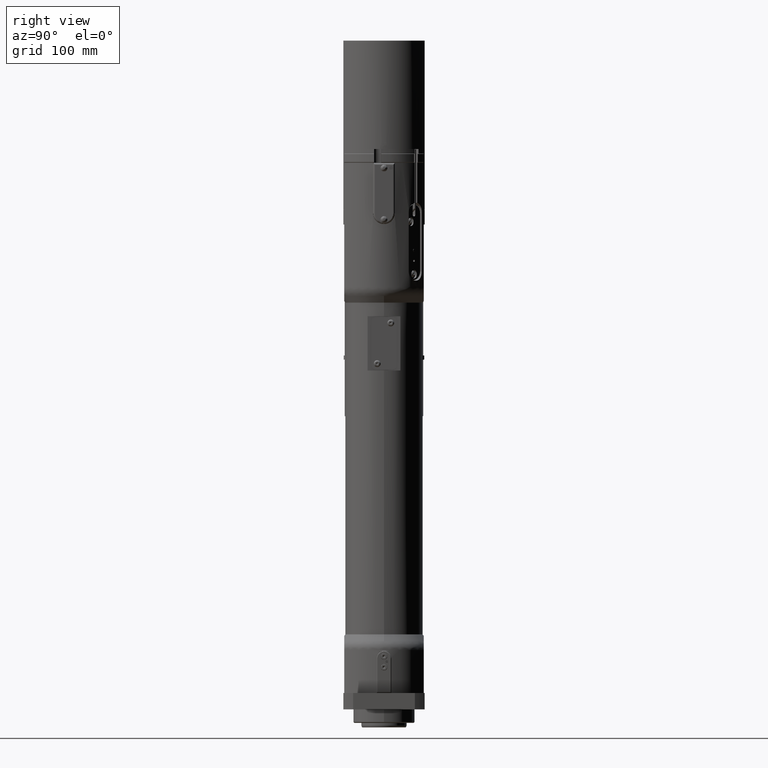
[diagram: clean part render]
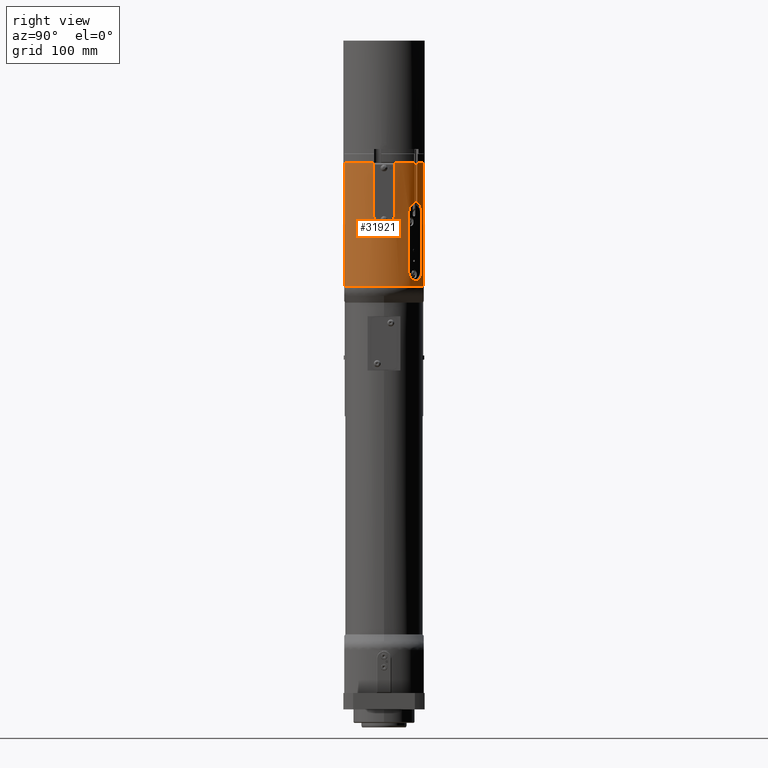
[diagram: same view with one face highlighted and labeled with its STEP entity id]
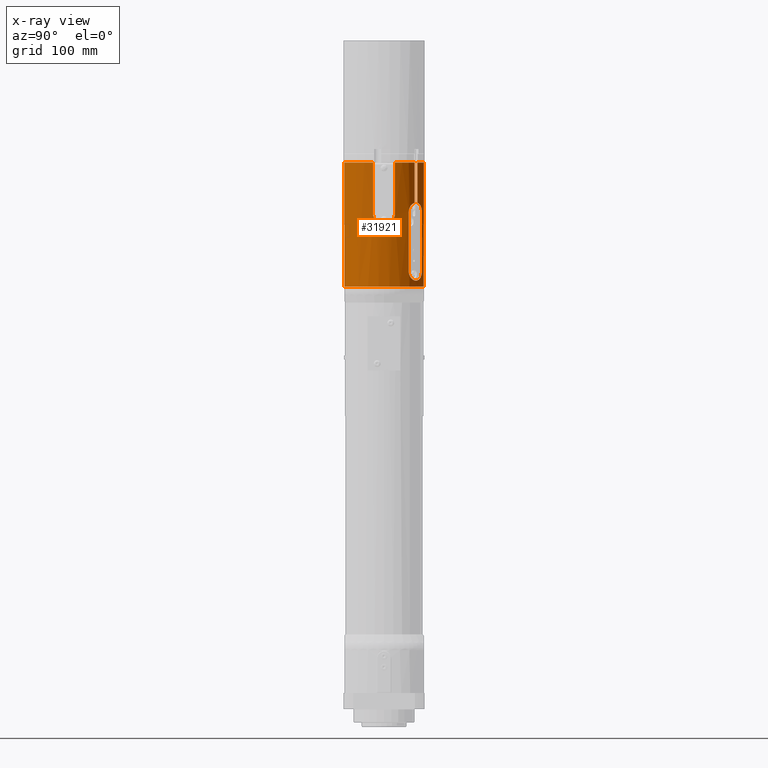
[diagram: x-ray of the same camera — body ghosted, the highlighted face saturated]
A machine part, right view. The second image highlights one B-rep face of the part: STEP entity #31921.
The next image is the same camera in x-ray: the body ghosted, the highlighted face saturated — about 0% of this face is hidden behind the body in this view.
In plain terms, the highlighted cylindrical surface (partial cylindrical patch) has radius 50 mm, axis along (-0, 0, 1).
Its self-contained STEP definition (entity closure, byte-faithful):
#1509=LINE('',#46508,#4162);
#2181=LINE('',#50349,#4834);
#2186=LINE('',#50357,#4839);
#2187=LINE('',#50362,#4840);
#2188=LINE('',#50365,#4841);
#2189=LINE('',#50370,#4842);
#2190=LINE('',#50383,#4843);
#2191=LINE('',#50404,#4844);
#4162=VECTOR('',#36763,56.);
#4834=VECTOR('',#39583,137.516660498395);
#4839=VECTOR('',#39592,137.516660498395);
#4840=VECTOR('',#39597,44.49800019996);
#4841=VECTOR('',#39600,56.);
#4842=VECTOR('',#39605,44.49800019996);
#4843=VECTOR('',#39606,65.9999999999999);
#4844=VECTOR('',#39607,66.);
#7115=CYLINDRICAL_SURFACE('',#34341,50.);
#7975=FACE_OUTER_BOUND('',#9810,.T.);
#9810=EDGE_LOOP('',(#23290,#23291,#23292,#23293,#23294,#23295,#23296,#23297,
#23298,#23299,#23300,#23301,#23302,#23303,#23304,#23305));
#11191=B_SPLINE_CURVE_WITH_KNOTS('',3,(#46484,#46485,#46486,#46487,#46488,
#46489,#46490,#46491,#46492,#46493,#46494,#46495,#46496,#46497,#46498,#46499,
#46500,#46501),.UNSPECIFIED.,.F.,.F.,(4,2,2,2,2,2,2,2,4),(-7.38513845204853,
-6.92353810155604,-6.46193775106356,-6.00039579504998,-5.53885383903639,
-5.07731188302281,-4.61576992700923,-4.15416957651675,-3.69256922602427),
 .UNSPECIFIED.);
#11286=B_SPLINE_CURVE_WITH_KNOTS('',3,(#50372,#50373,#50374,#50375,#50376,
#50377,#50378,#50379,#50380,#50381),.UNSPECIFIED.,.F.,.F.,(4,2,2,2,4),(-4.26325641456069E-14,
0.385398252965828,0.770796505931698,1.15617134672731,1.34549590073622),
 .UNSPECIFIED.);
#11287=B_SPLINE_CURVE_WITH_KNOTS('',3,(#50385,#50386,#50387,#50388,#50389,
#50390,#50391,#50392,#50393,#50394,#50395,#50396,#50397,#50398,#50399,#50400,
#50401,#50402),.UNSPECIFIED.,.F.,.F.,(4,2,2,2,2,2,2,2,4),(-3.08309237504583,
-2.69769412207997,-2.31229586911412,-1.92692102831852,-1.54154618752292,
-1.15617134672732,-0.770796505931714,-0.385398252965857,0.),
 .UNSPECIFIED.);
#11288=B_SPLINE_CURVE_WITH_KNOTS('',3,(#50405,#50406,#50407,#50408,#50409,
#50410,#50411,#50412,#50413,#50414),.UNSPECIFIED.,.F.,.F.,(4,2,2,2,4),(-3.08309237504587,
-2.69769412208,-2.31229586911414,-1.92692102831852,-1.73759647430963),
 .UNSPECIFIED.);
#11897=CIRCLE('',#34335,50.);
#11898=CIRCLE('',#34342,50.);
#11899=CIRCLE('',#34343,50.);
#11900=CIRCLE('',#34344,50.);
#12983=VERTEX_POINT('',#46481);
#12984=VERTEX_POINT('',#46483);
#12986=VERTEX_POINT('',#46506);
#13893=VERTEX_POINT('',#50287);
#13894=VERTEX_POINT('',#50302);
#13895=VERTEX_POINT('',#50348);
#13896=VERTEX_POINT('',#50355);
#13897=VERTEX_POINT('',#50360);
#13898=VERTEX_POINT('',#50361);
#13899=VERTEX_POINT('',#50363);
#13900=VERTEX_POINT('',#50367);
#13901=VERTEX_POINT('',#50369);
#13902=VERTEX_POINT('',#50371);
#13903=VERTEX_POINT('',#50382);
#13904=VERTEX_POINT('',#50384);
#13905=VERTEX_POINT('',#50403);
#16012=EDGE_CURVE('',#12983,#12984,#11191,.T.);
#16016=EDGE_CURVE('',#12983,#12986,#1509,.T.);
#17406=EDGE_CURVE('',#13893,#13894,#11897,.T.);
#17410=EDGE_CURVE('',#13895,#13894,#2181,.T.);
#17415=EDGE_CURVE('',#13893,#13896,#2186,.T.);
#17416=EDGE_CURVE('',#13897,#13898,#2187,.T.);
#17417=EDGE_CURVE('',#13899,#13898,#11898,.T.);
#17418=EDGE_CURVE('',#13899,#12984,#2188,.T.);
#17419=EDGE_CURVE('',#13895,#12986,#11899,.T.);
#17420=EDGE_CURVE('',#13900,#13896,#11900,.T.);
#17421=EDGE_CURVE('',#13900,#13901,#2189,.T.);
#17422=EDGE_CURVE('',#13902,#13901,#11286,.T.);
#17423=EDGE_CURVE('',#13902,#13903,#2190,.T.);
#17424=EDGE_CURVE('',#13904,#13903,#11287,.F.);
#17425=EDGE_CURVE('',#13904,#13905,#2191,.T.);
#17426=EDGE_CURVE('',#13905,#13897,#11288,.T.);
#23290=ORIENTED_EDGE('',*,*,#17416,.T.);
#23291=ORIENTED_EDGE('',*,*,#17417,.F.);
#23292=ORIENTED_EDGE('',*,*,#17418,.T.);
#23293=ORIENTED_EDGE('',*,*,#16012,.F.);
#23294=ORIENTED_EDGE('',*,*,#16016,.T.);
#23295=ORIENTED_EDGE('',*,*,#17419,.F.);
#23296=ORIENTED_EDGE('',*,*,#17410,.T.);
#23297=ORIENTED_EDGE('',*,*,#17406,.F.);
#23298=ORIENTED_EDGE('',*,*,#17415,.T.);
#23299=ORIENTED_EDGE('',*,*,#17420,.F.);
#23300=ORIENTED_EDGE('',*,*,#17421,.T.);
#23301=ORIENTED_EDGE('',*,*,#17422,.F.);
#23302=ORIENTED_EDGE('',*,*,#17423,.T.);
#23303=ORIENTED_EDGE('',*,*,#17424,.F.);
#23304=ORIENTED_EDGE('',*,*,#17425,.T.);
#23305=ORIENTED_EDGE('',*,*,#17426,.T.);
#31921=ADVANCED_FACE('',(#7975),#7115,.T.);
#34335=AXIS2_PLACEMENT_3D('',#50303,#39577,#39578);
#34341=AXIS2_PLACEMENT_3D('',#50359,#39595,#39596);
#34342=AXIS2_PLACEMENT_3D('',#50364,#39598,#39599);
#34343=AXIS2_PLACEMENT_3D('',#50366,#39601,#39602);
#34344=AXIS2_PLACEMENT_3D('',#50368,#39603,#39604);
#36763=DIRECTION('',(-1.67167866850702E-13,7.85086281699218E-15,1.));
#39577=DIRECTION('center_axis',(1.66741034889409E-13,-7.79443320540401E-15,
-1.));
#39578=DIRECTION('ref_axis',(-1.,1.29112725371859E-13,-1.6674103488941E-13));
#39583=DIRECTION('',(1.66763552238275E-13,-7.75043620007473E-15,-1.));
#39592=DIRECTION('',(-1.66731258754108E-13,7.75043620007473E-15,1.));
#39595=DIRECTION('center_axis',(-1.66741034889409E-13,7.79443320540401E-15,
1.));
#39596=DIRECTION('ref_axis',(1.,-1.28990260691945E-13,1.6674103488941E-13));
#39597=DIRECTION('',(-1.6666568769764E-13,7.78438541342269E-15,1.));
#39598=DIRECTION('center_axis',(-1.66741034889409E-13,7.79443320540401E-15,
1.));
#39599=DIRECTION('ref_axis',(-1.,1.29112725371859E-13,-1.6674103488941E-13));
#39600=DIRECTION('',(1.67167866850702E-13,-7.81121199468413E-15,-1.));
#39601=DIRECTION('center_axis',(-1.66741034889409E-13,7.79443320540401E-15,
1.));
#39602=DIRECTION('ref_axis',(-1.,1.29112725371859E-13,-1.6674103488941E-13));
#39603=DIRECTION('center_axis',(-1.66741034889409E-13,7.79443320540401E-15,
1.));
#39604=DIRECTION('ref_axis',(-1.,1.29112725371859E-13,-1.6674103488941E-13));
#39605=DIRECTION('',(1.6666568769764E-13,-7.7843854134227E-15,-1.));
#39606=DIRECTION('',(1.66735312425524E-13,-7.80520429433444E-15,-1.));
#39607=DIRECTION('',(-1.66735312425523E-13,7.80520429433443E-15,1.));
#46481=CARTESIAN_POINT('',(48.488761584543,-12.2000000000236,549.000000000063));
#46483=CARTESIAN_POINT('',(48.4887615845462,12.1999999999764,549.000000000063));
#46484=CARTESIAN_POINT('Ctrl Pts',(48.488761584543,-12.2000000000236,549.000000000063));
#46485=CARTESIAN_POINT('Ctrl Pts',(48.4887615845432,-12.2000000000236,547.461332165088));
#46486=CARTESIAN_POINT('Ctrl Pts',(48.5696240917423,-11.8912205945536,545.824568350215));
#46487=CARTESIAN_POINT('Ctrl Pts',(48.8580455101095,-10.6442890727607,542.820710700758));
#46488=CARTESIAN_POINT('Ctrl Pts',(49.061047404744,-9.70645465829642,541.453049197384));
#46489=CARTESIAN_POINT('Ctrl Pts',(49.4392839988113,-7.54708739608087,539.293681935169));
#46490=CARTESIAN_POINT('Ctrl Pts',(49.6396153403839,-6.17936885664582,538.35574094875));
#46491=CARTESIAN_POINT('Ctrl Pts',(49.9218731626589,-3.17530949546218,537.108731701668));
#46492=CARTESIAN_POINT('Ctrl Pts',(50.0000000000308,-1.53847318673582,536.800000000064));
#46493=CARTESIAN_POINT('Ctrl Pts',(50.0000000000311,1.53847318668806,536.800000000063));
#46494=CARTESIAN_POINT('Ctrl Pts',(49.9218731626597,3.17530949541438,537.108731701668));
#46495=CARTESIAN_POINT('Ctrl Pts',(49.6396153403855,6.17936885659811,538.35574094875));
#46496=CARTESIAN_POINT('Ctrl Pts',(49.4392839988132,7.54708739603327,539.293681935169));
#46497=CARTESIAN_POINT('Ctrl Pts',(49.0610474047465,9.70645465824894,541.453049197384));
#46498=CARTESIAN_POINT('Ctrl Pts',(48.8580455101122,10.6442890727133,542.820710700758));
#46499=CARTESIAN_POINT('Ctrl Pts',(48.5696240917454,11.8912205945062,545.824568350215));
#46500=CARTESIAN_POINT('Ctrl Pts',(48.4887615845464,12.1999999999764,547.461332165088));
#46501=CARTESIAN_POINT('Ctrl Pts',(48.4887615845461,12.1999999999764,549.000000000063));
#46506=CARTESIAN_POINT('',(48.4887615845337,-12.2000000000232,605.000000000064));
#46508=CARTESIAN_POINT('',(48.488761584543,-12.2000000000236,549.000000000063));
#50287=CARTESIAN_POINT('',(23.748684174124,43.999999999979,467.483339501664));
#50302=CARTESIAN_POINT('',(23.7486841741126,-44.0000000000211,467.483339501665));
#50303=CARTESIAN_POINT('Origin',(4.25178649620702E-11,-1.80109289393712E-11,
467.48333950166));
#50348=CARTESIAN_POINT('',(23.7486841740897,-44.0000000000201,605.00000000006));
#50349=CARTESIAN_POINT('',(23.7486841740897,-44.0000000000201,605.00000000006));
#50355=CARTESIAN_POINT('',(23.7486841741011,43.99999999998,605.000000000059));
#50357=CARTESIAN_POINT('',(23.748684174124,43.999999999979,467.483339501664));
#50359=CARTESIAN_POINT('Origin',(4.54330550838906E-11,-1.81472016613239E-11,
450.000000000056));
#50360=CARTESIAN_POINT('',(36.7412570277158,33.9128299029163,560.501999800101));
#50361=CARTESIAN_POINT('',(36.7412570277084,33.9128299029166,605.000000000061));
#50362=CARTESIAN_POINT('',(36.7412570277158,33.9128299029163,560.501999800101));
#50363=CARTESIAN_POINT('',(48.4887615845368,12.1999999999768,605.000000000063));
#50364=CARTESIAN_POINT('Origin',(1.95881946760322E-11,-1.69390645144863E-11,
605.000000000055));
#50365=CARTESIAN_POINT('',(48.4887615845368,12.1999999999768,605.000000000063));
#50366=CARTESIAN_POINT('Origin',(1.95881946760322E-11,-1.69390645144863E-11,
605.000000000055));
#50367=CARTESIAN_POINT('',(33.9128299029626,36.7412570276632,605.000000000061));
#50368=CARTESIAN_POINT('Origin',(1.95881946760322E-11,-1.69390645144863E-11,
605.000000000055));
#50369=CARTESIAN_POINT('',(33.91282990297,36.7412570276629,560.501999800101));
#50370=CARTESIAN_POINT('',(33.9128299029626,36.7412570276632,605.000000000061));
#50371=CARTESIAN_POINT('',(27.3993585144806,41.8243368506313,550.50000000006));
#50372=CARTESIAN_POINT('Ctrl Pts',(27.3993585144806,41.8243368506313,550.50000000006));
#50373=CARTESIAN_POINT('Ctrl Pts',(27.3993585144804,41.8243368506313,551.784660843279));
#50374=CARTESIAN_POINT('Ctrl Pts',(27.6208953278384,41.6817418440008,553.152401696787));
#50375=CARTESIAN_POINT('Ctrl Pts',(28.4991093082361,41.0862778233052,555.664352581469));
#50376=CARTESIAN_POINT('Ctrl Pts',(29.1534816709345,40.6313716062034,556.808884529286));
#50377=CARTESIAN_POINT('Ctrl Pts',(30.6176107629128,39.5397984567848,558.616038914872));
#50378=CARTESIAN_POINT('Ctrl Pts',(31.5257530640446,38.8292952335299,559.400460302993));
#50379=CARTESIAN_POINT('Ctrl Pts',(32.9540560588898,37.608686201947,560.17747277988));
#50380=CARTESIAN_POINT('Ctrl Pts',(33.4363842877987,37.1810247550744,560.372453573245));
#50381=CARTESIAN_POINT('Ctrl Pts',(33.91282990297,36.7412570276629,560.501999800101));
#50382=CARTESIAN_POINT('',(27.3993585144917,41.8243368506308,484.50000000006));
#50383=CARTESIAN_POINT('',(27.3993585144806,41.8243368506313,550.50000000006));
#50384=CARTESIAN_POINT('',(41.8243368506954,27.3993585144233,484.500000000062));
#50385=CARTESIAN_POINT('Ctrl Pts',(27.3993585144917,41.8243368506308,484.50000000006));
#50386=CARTESIAN_POINT('Ctrl Pts',(27.3993585144919,41.8243368506308,483.21533915684));
#50387=CARTESIAN_POINT('Ctrl Pts',(27.6208953278503,41.6817418440002,481.847598303333));
#50388=CARTESIAN_POINT('Ctrl Pts',(28.4991093082489,41.0862778233046,479.335647418652));
#50389=CARTESIAN_POINT('Ctrl Pts',(29.1534816709476,40.6313716062028,478.191115470834));
#50390=CARTESIAN_POINT('Ctrl Pts',(30.6176107629265,39.5397984567841,476.383961085249));
#50391=CARTESIAN_POINT('Ctrl Pts',(31.5257530640585,38.8292952335293,475.599539697128));
#50392=CARTESIAN_POINT('Ctrl Pts',(33.4413007198332,37.1922932966125,474.557460786715));
#50393=CARTESIAN_POINT('Ctrl Pts',(34.4470018486226,36.2636762700558,474.300000000061));
#50394=CARTESIAN_POINT('Ctrl Pts',(36.2636762701241,34.4470018485539,474.300000000061));
#50395=CARTESIAN_POINT('Ctrl Pts',(37.1922932966804,33.4413007197643,474.557460786716));
#50396=CARTESIAN_POINT('Ctrl Pts',(38.8292952335965,31.5257530639894,475.599539697129));
#50397=CARTESIAN_POINT('Ctrl Pts',(39.539798456851,30.6176107628574,476.38396108525));
#50398=CARTESIAN_POINT('Ctrl Pts',(40.631371606269,29.1534816708785,478.191115470836));
#50399=CARTESIAN_POINT('Ctrl Pts',(41.0862778233704,28.4991093081798,479.335647418654));
#50400=CARTESIAN_POINT('Ctrl Pts',(41.6817418440653,27.6208953277815,481.847598303336));
#50401=CARTESIAN_POINT('Ctrl Pts',(41.8243368506956,27.3993585144233,483.215339156843));
#50402=CARTESIAN_POINT('Ctrl Pts',(41.8243368506954,27.3993585144233,484.500000000062));
#50403=CARTESIAN_POINT('',(41.8243368506844,27.3993585144239,550.500000000062));
#50404=CARTESIAN_POINT('',(41.8243368506954,27.3993585144233,484.500000000062));
#50405=CARTESIAN_POINT('Ctrl Pts',(41.8243368506844,27.3993585144239,550.500000000062));
#50406=CARTESIAN_POINT('Ctrl Pts',(41.8243368506842,27.3993585144238,551.784660843282));
#50407=CARTESIAN_POINT('Ctrl Pts',(41.6817418440534,27.6208953277821,553.152401696789));
#50408=CARTESIAN_POINT('Ctrl Pts',(41.0862778233576,28.4991093081805,555.664352581471));
#50409=CARTESIAN_POINT('Ctrl Pts',(40.6313716062558,29.1534816708791,556.808884529288));
#50410=CARTESIAN_POINT('Ctrl Pts',(39.5397984568373,30.617610762858,558.616038914874));
#50411=CARTESIAN_POINT('Ctrl Pts',(38.8292952335825,31.5257530639901,559.400460302995));
#50412=CARTESIAN_POINT('Ctrl Pts',(37.6086862019998,32.9540560588358,560.177472779881));
#50413=CARTESIAN_POINT('Ctrl Pts',(37.1810247551274,33.4363842877448,560.372453573246));
#50414=CARTESIAN_POINT('Ctrl Pts',(36.7412570277159,33.9128299029162,560.501999800101));